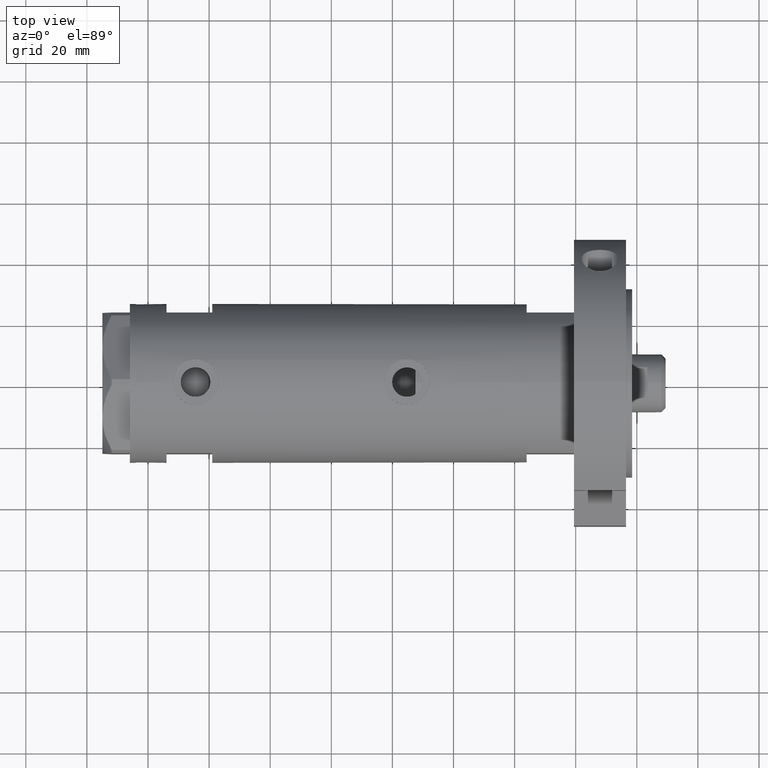
[diagram: clean part render]
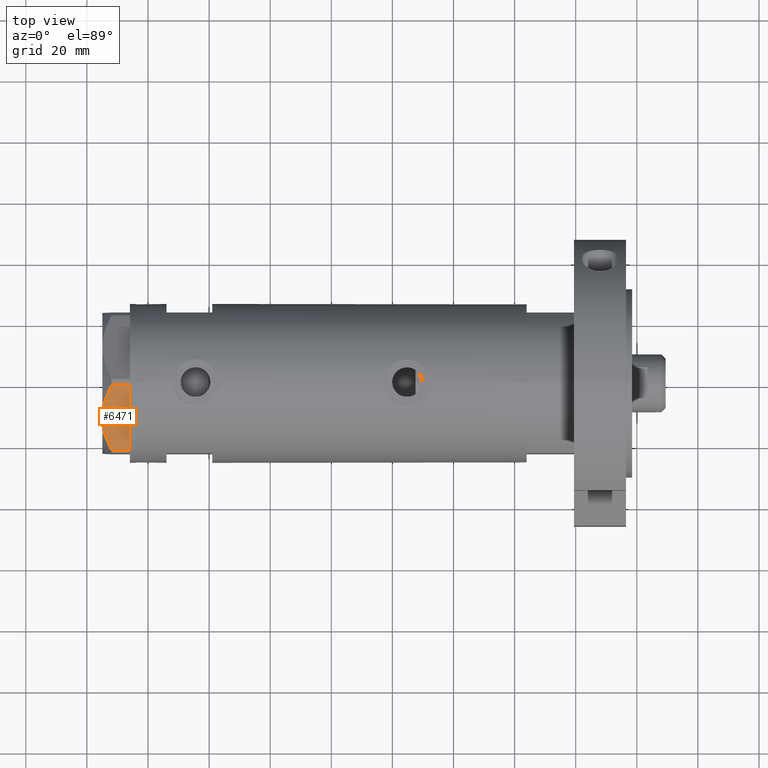
[diagram: same view with one face highlighted and labeled with its STEP entity id]
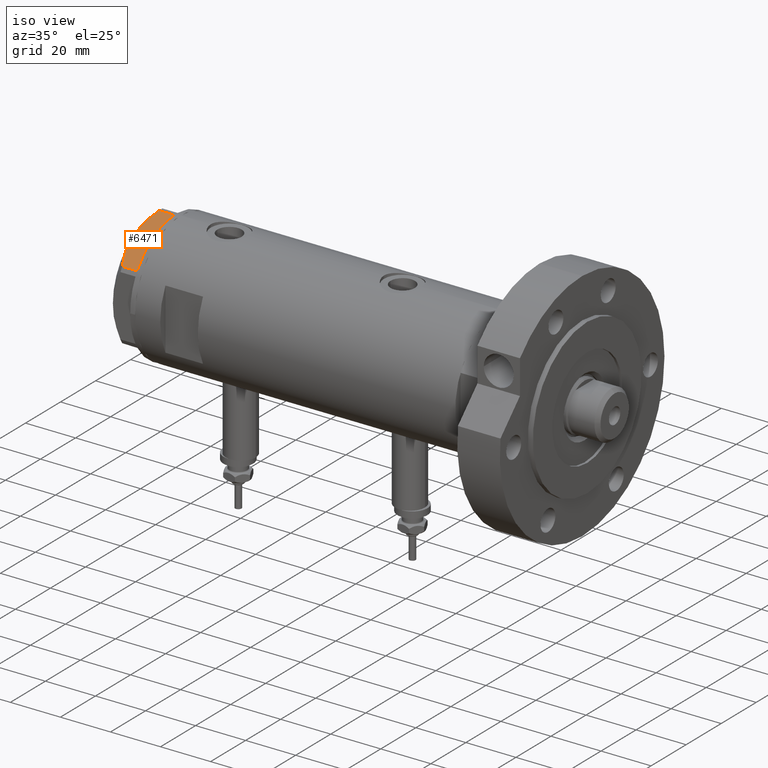
[diagram: same view with one face highlighted and labeled with its STEP entity id]
A machine part, top view. The second image highlights one B-rep face of the part: STEP entity #6471.
A second angle (iso view) of the same face is appended — the face is thin or edge-on in the first view.
In plain terms, the highlighted planar face has unit normal (-0, 0.5, -0.866).
Its self-contained STEP definition (entity closure, byte-faithful):
#20 = CARTESIAN_POINT ( 'NONE',  ( -11.49999999999990585, -19.91858428704219364, 9.000000000000000000 ) ) ;
#247 = VERTEX_POINT ( 'NONE', #2853 ) ;
#287 = VERTEX_POINT ( 'NONE', #5426 ) ;
#388 = CARTESIAN_POINT ( 'NONE',  ( -0.9699484522383977625, -25.99811238272274494, 9.000000000000000000 ) ) ;
#523 = ORIENTED_EDGE ( 'NONE', *, *, #4171, .T. ) ;
#532 = ORIENTED_EDGE ( 'NONE', *, *, #2712, .T. ) ;
#990 = CARTESIAN_POINT ( 'NONE',  ( -20.37350567916426058, -14.79546339452094017, 6.877782426143456362 ) ) ;
#1109 = LINE ( 'NONE', #2281, #2382 ) ;
#1210 = ORIENTED_EDGE ( 'NONE', *, *, #6690, .T. ) ;
#1418 = CARTESIAN_POINT ( 'NONE',  ( -16.05322244309625290, -17.28978008384019915, 8.426899937603781865 ) ) ;
#1492 = LINE ( 'NONE', #1646, #4962 ) ;
#1640 = VECTOR ( 'NONE', #3440, 1000.000000000000000 ) ;
#1646 = CARTESIAN_POINT ( 'NONE',  ( -22.99999999999990408, -13.27905619136147841, 0.000000000000000000 ) ) ;
#1772 = DIRECTION ( 'NONE',  ( -0.8660254037844414832, 0.4999999999999950040, 0.000000000000000000 ) ) ;
#1849 = VERTEX_POINT ( 'NONE', #3968 ) ;
#1938 = CARTESIAN_POINT ( 'NONE',  ( -3.925137811031424562, -24.29193301091729396, 7.397272853992039821 ) ) ;
#2021 = CARTESIAN_POINT ( 'NONE',  ( -12.41906678023023325, -19.38796083407287085, 8.981686407609506873 ) ) ;
#2098 = CARTESIAN_POINT ( 'NONE',  ( -13.34348161667001698, -18.85424967941148822, 8.907842277728438063 ) ) ;
#2133 = LINE ( 'NONE', #388, #1640 ) ;
#2145 = VERTEX_POINT ( 'NONE', #20 ) ;
#2173 = EDGE_CURVE ( 'NONE', #1849, #287, #1492, .T. ) ;
#2236 = VECTOR ( 'NONE', #3487, 1000.000000000000000 ) ;
#2281 = CARTESIAN_POINT ( 'NONE',  ( -22.99999999999990408, -13.27905619136147841, 0.000000000000000000 ) ) ;
#2382 = VECTOR ( 'NONE', #4172, 1000.000000000000000 ) ;
#2634 = CARTESIAN_POINT ( 'NONE',  ( -15.16323225988328538, -17.80361615569431777, 8.637313967156948991 ) ) ;
#2699 = B_SPLINE_CURVE_WITH_KNOTS ( 'NONE', 3,
 ( #6314, #4531, #6878, #4988, #4372, #3761, #1938, #7443, #6223, #5062 ),
 .UNSPECIFIED., .F., .F.,
 ( 4, 2, 2, 2, 4 ),
 ( 0.01376519981810312397, 0.01998941321701459134, 0.02154546656674245428, 0.02310151991647032069, 0.02621362661592604310 ),
 .UNSPECIFIED. ) ;
#2712 = EDGE_CURVE ( 'NONE', #287, #247, #1109, .T. ) ;
#2853 = CARTESIAN_POINT ( 'NONE',  ( -0.9999999999997406519, -25.98076211353317433, 0.000000000000000000 ) ) ;
#2972 = CARTESIAN_POINT ( 'NONE',  ( -22.99999999999990408, -13.27905619136147841, 9.000000000000000000 ) ) ;
#3242 = EDGE_CURVE ( 'NONE', #2145, #5023, #2699, .T. ) ;
#3400 = CARTESIAN_POINT ( 'NONE',  ( -18.67981377008999644, -15.77331687414923778, 7.629374868826104716 ) ) ;
#3440 = DIRECTION ( 'NONE',  ( 0.000000000000000000, 0.000000000000000000, 1.000000000000000000 ) ) ;
#3456 = EDGE_LOOP ( 'NONE', ( #3619, #6891, #4264, #532, #1210, #523, #7017 ) ) ;
#3487 = DIRECTION ( 'NONE',  ( -0.000000000000000000, 0.000000000000000000, -1.000000000000000000 ) ) ;
#3529 = CARTESIAN_POINT ( 'NONE',  ( -22.03005154776146313, -13.83905619136139364, 5.983800287807550689 ) ) ;
#3619 = ORIENTED_EDGE ( 'NONE', *, *, #7564, .F. ) ;
#3761 = CARTESIAN_POINT ( 'NONE',  ( -4.357207709417335373, -24.04247733877546267, 7.570552255230290406 ) ) ;
#3878 = CARTESIAN_POINT ( 'NONE',  ( -11.95865151389046588, -19.65378171203314395, 9.000000000000095923 ) ) ;
#3907 = CARTESIAN_POINT ( 'NONE',  ( -22.99999999999990408, -13.27905619136147841, 0.000000000000000000 ) ) ;
#3929 = CARTESIAN_POINT ( 'NONE',  ( -0.9699484522383943208, -25.99811238272274494, 0.000000000000000000 ) ) ;
#3968 = CARTESIAN_POINT ( 'NONE',  ( -22.03005154776132102, -13.83905619136147536, 0.000000000000000000 ) ) ;
#4165 = PLANE ( 'NONE',  #7135 ) ;
#4171 = EDGE_CURVE ( 'NONE', #6295, #5023, #2133, .T. ) ;
#4172 = DIRECTION ( 'NONE',  ( 0.8660254037844415942, -0.4999999999999950595, 0.000000000000000000 ) ) ;
#4264 = ORIENTED_EDGE ( 'NONE', *, *, #2173, .T. ) ;
#4372 = CARTESIAN_POINT ( 'NONE',  ( -5.229981517799206614, -23.53858114556453529, 7.892128867758890998 ) ) ;
#4404 = CARTESIAN_POINT ( 'NONE',  ( -0.9699484522404678843, -25.99811238272155123, 5.983800287808756835 ) ) ;
#4531 = CARTESIAN_POINT ( 'NONE',  ( -9.678244919010385416, -20.97037507344893115, 9.000000000000088818 ) ) ;
#4568 = CARTESIAN_POINT ( 'NONE',  ( -11.49999999999990585, -19.91858428704219364, 9.000000000000000000 ) ) ;
#4798 = VERTEX_POINT ( 'NONE', #3529 ) ;
#4962 = VECTOR ( 'NONE', #6336, 1000.000000000000000 ) ;
#4988 = CARTESIAN_POINT ( 'NONE',  ( -5.671686373603866294, -23.28356272816335348, 8.040681765829727823 ) ) ;
#5023 = VERTEX_POINT ( 'NONE', #4404 ) ;
#5062 = CARTESIAN_POINT ( 'NONE',  ( -0.9699484522404678843, -25.99811238272155123, 5.983800287808756835 ) ) ;
#5090 = LINE ( 'NONE', #3907, #6366 ) ;
#5179 = CARTESIAN_POINT ( 'NONE',  ( -22.03005154776146313, -13.83905619136139364, 5.983800287807550689 ) ) ;
#5277 = EDGE_CURVE ( 'NONE', #4798, #1849, #5393, .T. ) ;
#5393 = LINE ( 'NONE', #7756, #2236 ) ;
#5426 = CARTESIAN_POINT ( 'NONE',  ( -21.99999999999998224, -13.85640646055105485, 0.000000000000000000 ) ) ;
#5427 = FACE_OUTER_BOUND ( 'NONE', #3456, .T. ) ;
#5792 = DIRECTION ( 'NONE',  ( 0.8660254037844415942, -0.4999999999999950595, 0.000000000000000000 ) ) ;
#6223 = CARTESIAN_POINT ( 'NONE',  ( -1.799196345398571983, -25.51934588838179607, 6.431317509510369845 ) ) ;
#6295 = VERTEX_POINT ( 'NONE', #3929 ) ;
#6314 = CARTESIAN_POINT ( 'NONE',  ( -11.49999999999990585, -19.91858428704219364, 9.000000000000000000 ) ) ;
#6336 = DIRECTION ( 'NONE',  ( 0.8660254037844415942, -0.4999999999999950595, 0.000000000000000000 ) ) ;
#6366 = VECTOR ( 'NONE', #5792, 1000.000000000000000 ) ;
#6471 = ADVANCED_FACE ( 'NONE', ( #5427 ), #4165, .F. ) ;
#6690 = EDGE_CURVE ( 'NONE', #247, #6295, #5090, .T. ) ;
#6878 = CARTESIAN_POINT ( 'NONE',  ( -7.884645426990268824, -22.00591022298511490, 8.707651728477127762 ) ) ;
#6891 = ORIENTED_EDGE ( 'NONE', *, *, #5277, .T. ) ;
#7017 = ORIENTED_EDGE ( 'NONE', *, *, #3242, .F. ) ;
#7081 = B_SPLINE_CURVE_WITH_KNOTS ( 'NONE', 3,
 ( #5179, #990, #3400, #1418, #2634, #7630, #2098, #2021, #3878, #4568 ),
 .UNSPECIFIED., .F., .F.,
 ( 4, 2, 2, 2, 4 ),
 ( 0.001228959670438514989, 0.007497079744270818830, 0.01063113978118697227, 0.01219816979964504812, 0.01376519981810312397 ),
 .UNSPECIFIED. ) ;
#7135 = AXIS2_PLACEMENT_3D ( 'NONE', #2972, #7314, #1772 ) ;
#7314 = DIRECTION ( 'NONE',  ( 0.4999999999999950595, 0.8660254037844415942, -0.000000000000000000 ) ) ;
#7443 = CARTESIAN_POINT ( 'NONE',  ( -2.640413878808339110, -25.03366871902064261, 6.844201024439214187 ) ) ;
#7564 = EDGE_CURVE ( 'NONE', #4798, #2145, #7081, .T. ) ;
#7630 = CARTESIAN_POINT ( 'NONE',  ( -13.80210138309694301, -18.58946543380922378, 8.852712638955804181 ) ) ;
#7756 = CARTESIAN_POINT ( 'NONE',  ( -22.03005154776132102, -13.83905619136147536, 9.000000000000000000 ) ) ;